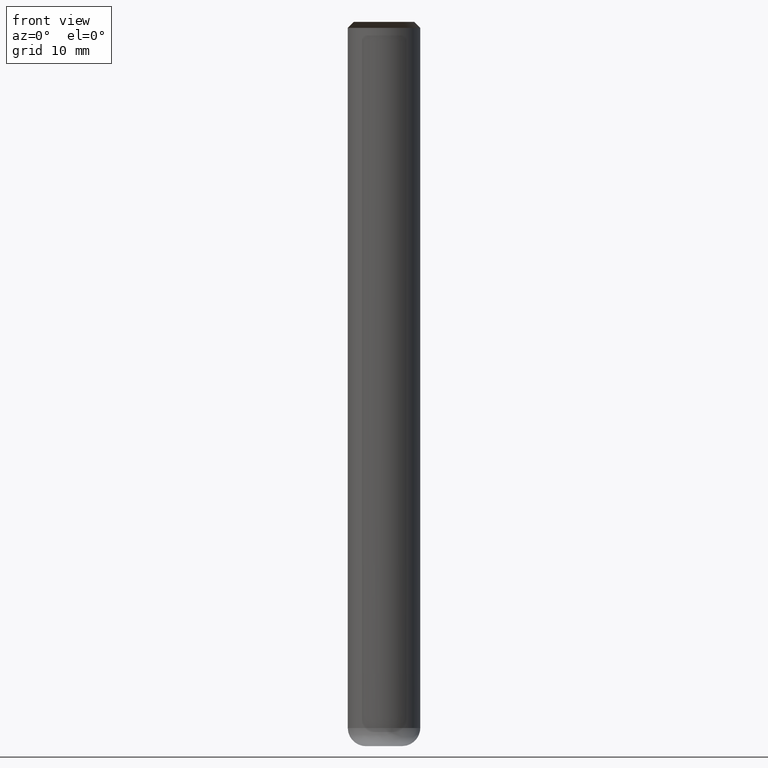
[diagram: clean part render]
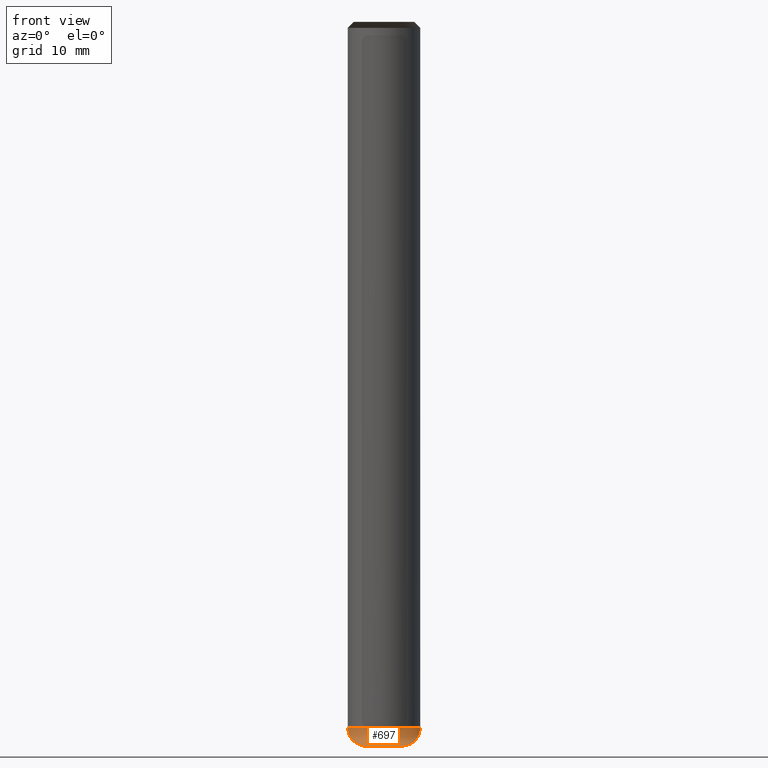
[diagram: same view with one face highlighted and labeled with its STEP entity id]
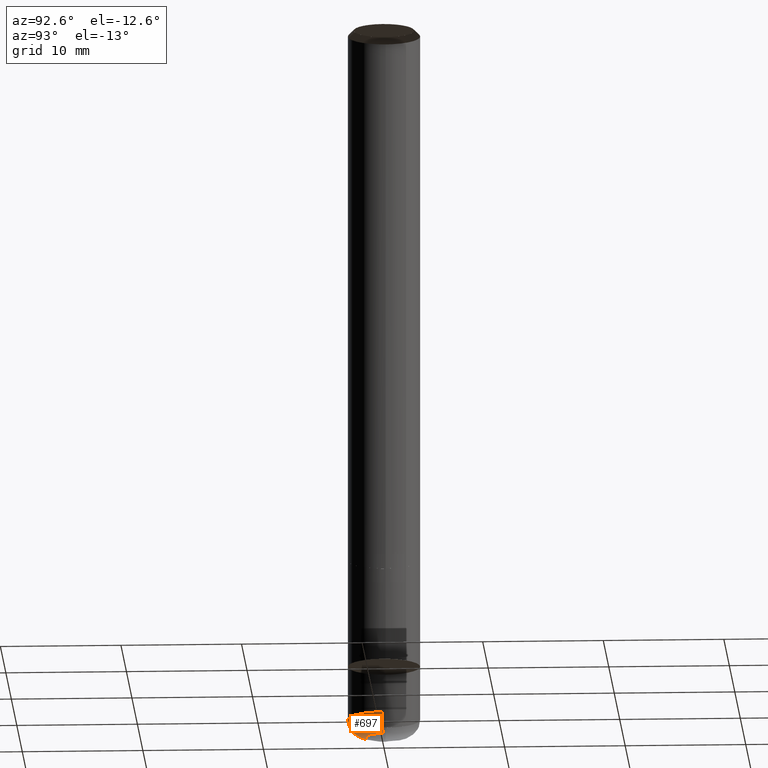
[diagram: same view with one face highlighted and labeled with its STEP entity id]
A machine part, front view. The second image highlights one B-rep face of the part: STEP entity #697.
A second angle (auxiliary view) of the same face is appended — the face is thin or edge-on in the first view.
In plain terms, the highlighted face is a freeform B-spline surface patch.
Its self-contained STEP definition (entity closure, byte-faithful):
#525=CARTESIAN_POINT('',(1.5,0.0,-15.0));
#529=CARTESIAN_POINT('',(-1.5,0.0,-15.0));
#530=CARTESIAN_POINT('',(3.0,0.0,-15.0));
#534=CARTESIAN_POINT('',(-3.0,0.0,-15.0));
#535=CARTESIAN_POINT('',(3.0,0.0,-13.5));
#539=CARTESIAN_POINT('',(-3.0,0.0,-13.5));
#546=CARTESIAN_POINT('',(-1.5,-1.5,-15.0));
#547=CARTESIAN_POINT('',(0.0,-1.5,-15.0));
#548=CARTESIAN_POINT('',(1.5,-1.5,-15.0));
#549=CARTESIAN_POINT('',(-3.0,-3.0,-15.0));
#550=CARTESIAN_POINT('',(0.0,-3.0,-15.0));
#551=CARTESIAN_POINT('',(3.0,-3.0,-15.0));
#552=CARTESIAN_POINT('',(-3.0,-3.0,-13.5));
#553=CARTESIAN_POINT('',(0.0,-3.0,-13.5));
#554=CARTESIAN_POINT('',(3.0,-3.0,-13.5));
#678=(
BOUNDED_SURFACE()
B_SPLINE_SURFACE(2,2,(
(#529,#546,#547,#548,#525),
(#534,#549,#550,#551,#530),
(#539,#552,#553,#554,#535)
), .UNSPECIFIED.,.F.,.F.,.F.)
B_SPLINE_SURFACE_WITH_KNOTS((3,3),(3,2,3),(
0.0,1.0),(
0.0,0.5,1.0), .UNSPECIFIED.)
GEOMETRIC_REPRESENTATION_ITEM()
RATIONAL_B_SPLINE_SURFACE(((1.0,0.707106781187,1.0,0.707106781187,1.0),
(0.707106781187,0.5,0.707106781187,0.5,0.707106781187),
(1.0,0.707106781187,1.0,0.707106781187,1.0)
))
REPRESENTATION_ITEM('')
SURFACE()
);
#679=(
BOUNDED_CURVE()
B_SPLINE_CURVE(2,(#539,#534,#529),.UNSPECIFIED.,.F.,.F.)
B_SPLINE_CURVE_WITH_KNOTS((3,3),
(0.0,1.0),.UNSPECIFIED.)
CURVE()
GEOMETRIC_REPRESENTATION_ITEM()
RATIONAL_B_SPLINE_CURVE((1.0,0.707106781187,1.0))
REPRESENTATION_ITEM('')
);
#680=(
BOUNDED_CURVE()
B_SPLINE_CURVE(2,(#529,#546,#547,#548,#525),.UNSPECIFIED.,.F.,.F.)
B_SPLINE_CURVE_WITH_KNOTS((3,2,3),
(0.0,0.5,1.0),.UNSPECIFIED.)
CURVE()
GEOMETRIC_REPRESENTATION_ITEM()
RATIONAL_B_SPLINE_CURVE((1.0,0.707106781187,1.0,0.707106781187,1.0))
REPRESENTATION_ITEM('')
);
#681=(
BOUNDED_CURVE()
B_SPLINE_CURVE(2,(#525,#530,#535),.UNSPECIFIED.,.F.,.F.)
B_SPLINE_CURVE_WITH_KNOTS((3,3),
(0.0,1.0),.UNSPECIFIED.)
CURVE()
GEOMETRIC_REPRESENTATION_ITEM()
RATIONAL_B_SPLINE_CURVE((1.0,0.707106781187,1.0))
REPRESENTATION_ITEM('')
);
#682=(
BOUNDED_CURVE()
B_SPLINE_CURVE(2,(#535,#554,#553,#552,#539),.UNSPECIFIED.,.F.,.F.)
B_SPLINE_CURVE_WITH_KNOTS((3,2,3),
(0.0,0.5,1.0),.UNSPECIFIED.)
CURVE()
GEOMETRIC_REPRESENTATION_ITEM()
RATIONAL_B_SPLINE_CURVE((1.0,0.707106781187,1.0,0.707106781187,1.0))
REPRESENTATION_ITEM('')
);
#683=VERTEX_POINT('',#525);
#684=VERTEX_POINT('',#529);
#685=VERTEX_POINT('',#535);
#686=VERTEX_POINT('',#539);
#687=EDGE_CURVE('',#686,#684,#679,.T.);
#688=EDGE_CURVE('',#684,#683,#680,.T.);
#689=EDGE_CURVE('',#683,#685,#681,.T.);
#690=EDGE_CURVE('',#685,#686,#682,.T.);
#691=ORIENTED_EDGE('',*,*,#687,.T.);
#692=ORIENTED_EDGE('',*,*,#688,.T.);
#693=ORIENTED_EDGE('',*,*,#689,.T.);
#694=ORIENTED_EDGE('',*,*,#690,.T.);
#695=EDGE_LOOP('',(#691,#692,#693,#694));
#696=FACE_OUTER_BOUND('',#695,.T.);
#697=ADVANCED_FACE('',(#696),#678,.T.);